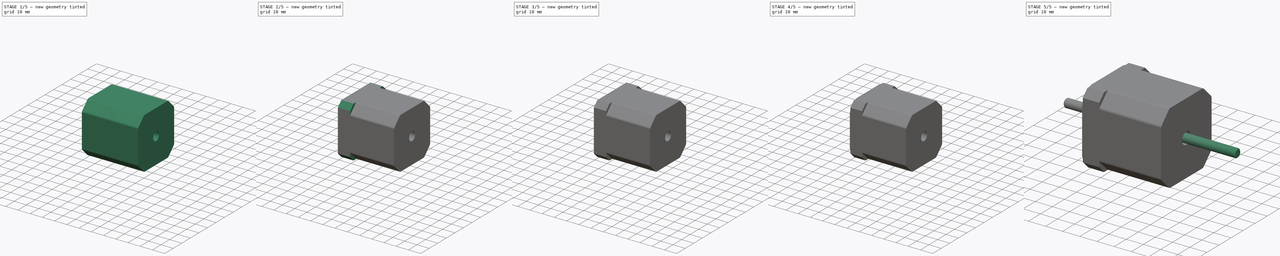
[diagram: build sequence overview — one tinted view per stage of 5, left to right]
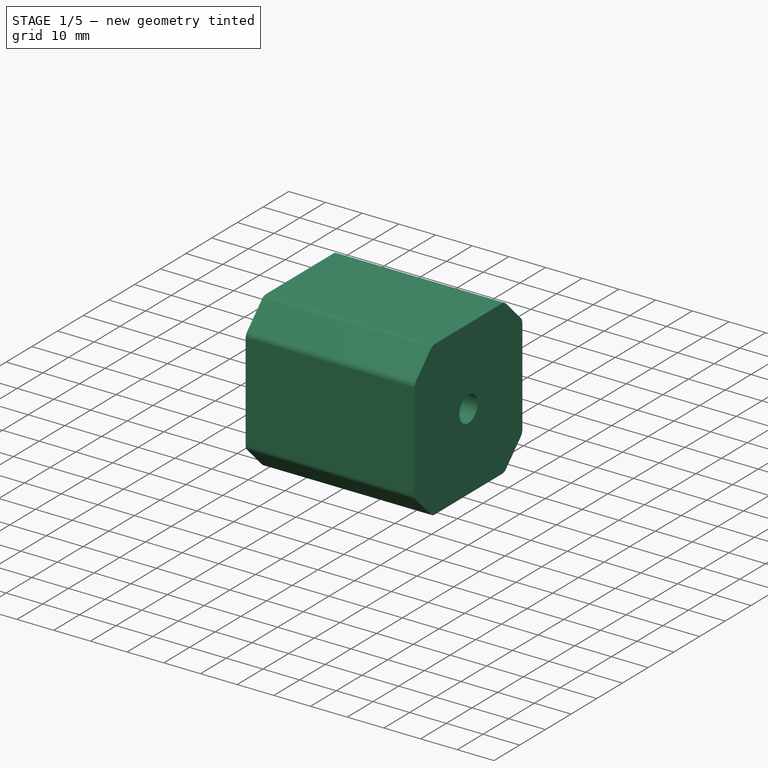
[diagram: stage 1 of 5 — iso view after this stage's code; geometry added in this stage tinted green]
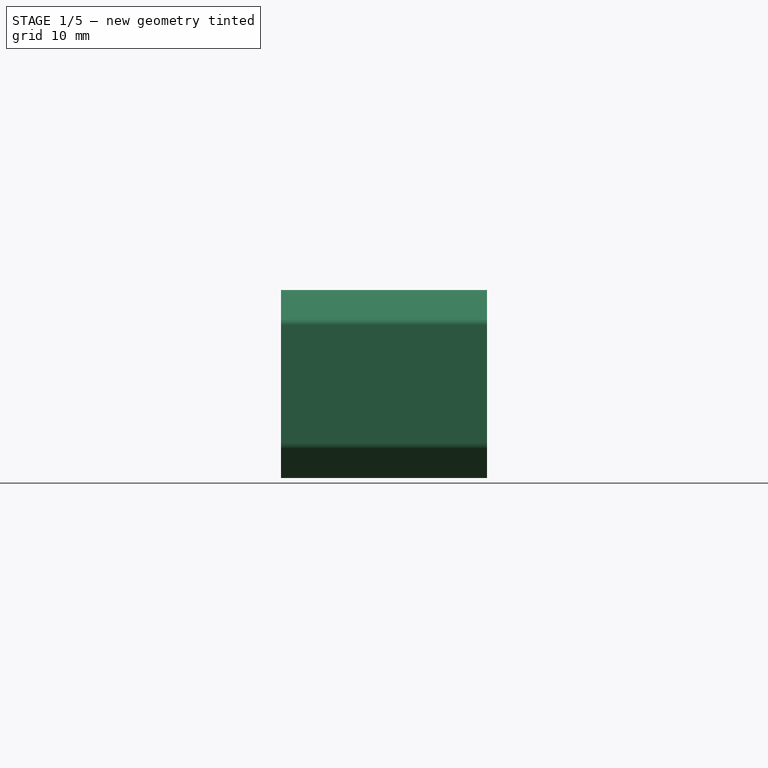
[diagram: stage 1 of 5 — front view after this stage's code; geometry added in this stage tinted green]
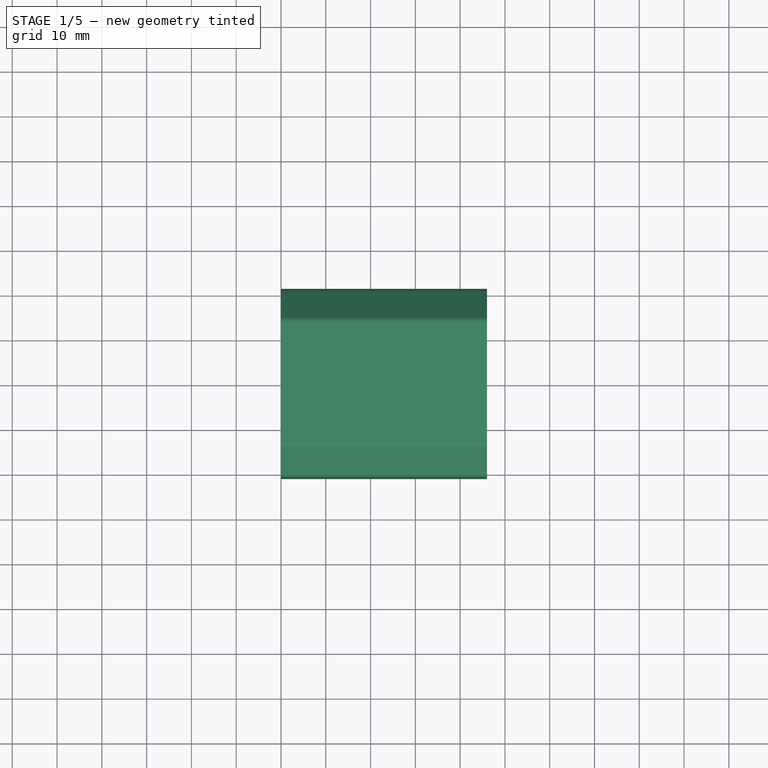
[diagram: stage 1 of 5 — top view after this stage's code; geometry added in this stage tinted green]
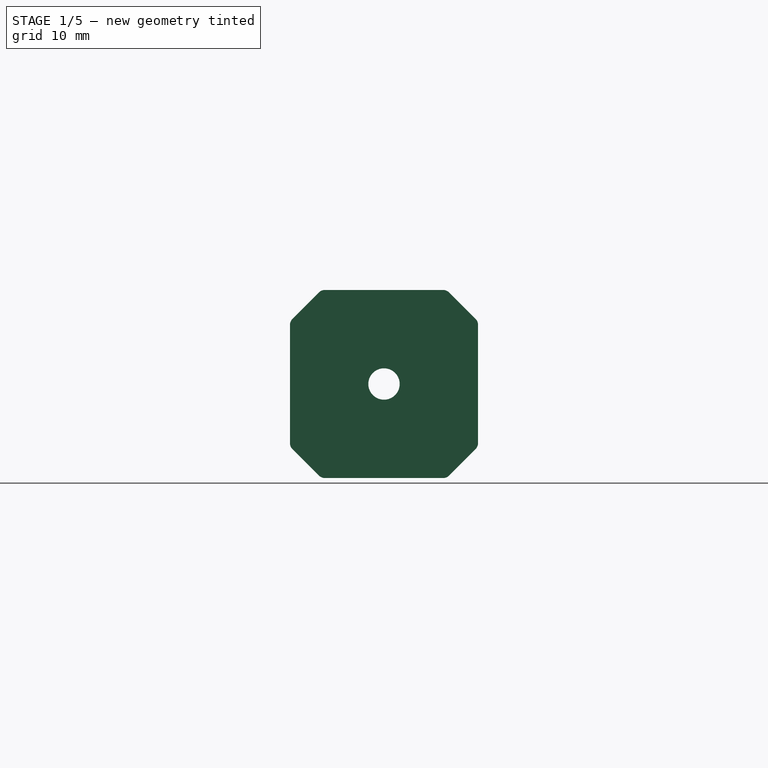
[diagram: stage 1 of 5 — right view after this stage's code; geometry added in this stage tinted green]
FCSTD DOCUMENT  (FreeCAD 0.19R23258 (Git))
Label: Nema17
License: All rights reserved
LicenseURL: http://en.wikipedia.org/wiki/All_rights_reserved
objects: PartDesign::CoordinateSystem×11, Sketcher::SketchObject×11, App::Part×6, PartDesign::Pocket×5, PartDesign::Body×5, App::Link×5, PartDesign::Pad×4, PartDesign::Fillet×4, App::DocumentObjectGroup×2, App::FeaturePython×1, Spreadsheet::Sheet×1, PartDesign::Revolution×1, PartDesign::Hole×1
note: 57 computed .brp shape members not serialized (recipe doc carries the construction recipe); baked Part::Feature solids carry a one-line shape summary decoded from their .brp

FEATURE [PartDesign::Body] Body
  Group = -> [Sketch,Revolution,Sketch001,Pocket]
  Origin = -> Origin005
  Tip = -> Pocket
FEATURE [PartDesign::CoordinateSystem] LCS_1
  AttacherType = Attacher::AttachEngine3D
  MapMode = 2
  Support = -> [LCS_0001]
FEATURE [Sketcher::SketchObject] Sketch002
  MapMode = 5
  Placement = pos=(0,0,0) rot=(0.57735,0.57735,0.57735;2.0944rad)
  Support = -> [YZ_Plane006]
  sketch-geometry (8):
    g0: LineSegment StartX=-21 StartY=14 StartZ=0 EndX=-14 EndY=21 EndZ=0
    g1: LineSegment StartX=-14 StartY=21 StartZ=0 EndX=14 EndY=21 EndZ=0
    g2: LineSegment StartX=14 StartY=21 StartZ=0 EndX=21 EndY=14 EndZ=0
    g3: LineSegment StartX=21 StartY=14 StartZ=0 EndX=21 EndY=-14 EndZ=0
    g4: LineSegment StartX=21 StartY=-14 StartZ=0 EndX=14 EndY=-21 EndZ=0
    g5: LineSegment StartX=14 StartY=-21 StartZ=0 EndX=-14 EndY=-21 EndZ=0
    g6: LineSegment StartX=-14 StartY=-21 StartZ=0 EndX=-21 EndY=-14 EndZ=0
    g7: LineSegment StartX=-21 StartY=-14 StartZ=0 EndX=-21 EndY=14 EndZ=0
  constraints (24):
    c: Coincident(g0,g1)
    c: Horizontal(g1)
    c: Coincident(g1,g2)
    c: Coincident(g2,g3)
    c: Vertical(g3)
    c: Coincident(g3,g4)
    c: Coincident(g4,g5)
    c: Horizontal(g5)
    c: Coincident(g5,g6)
    c: Coincident(g6,g7)
    c: Vertical(g7)
    c: Coincident(g7,g0)
    c: DistanceX(g0,g2) = 42
    c: DistanceY(g5,g0) = 42
    c: Distance(g1) = 28
    c: Equal(g7,g1)
    c: Equal(g1,g3)
    c: Equal(g3,g5)
    c: DistanceY(g5,g-1) = 21
    c: DistanceX(g0,g-1) = 21
    c: Equal(g6,g2)
    c: Equal(g2,g0)
    c: Equal(g0,g4)
    c: DistanceX(g0,g0) = 7
FEATURE [PartDesign::Pad] Pad
  AllowMultiFace = false
  Direction = (1,1,1)
  Length = 46
  Length2 = 100
  Placement = pos=(0,0,0) rot=(0.57735,0.57735,0.57735;2.0944rad)
  Profile = -> Sketch002
  Type = 0
  expr: Length = Spreadsheet.BodyLength - Spreadsheet.FrontCapLength - Spreadsheet.BackCapLenght
FEATURE [PartDesign::CoordinateSystem] LCS_1001
  AttacherType = Attacher::AttachEngine3D
  AttachmentOffset = pos=(46,0,0) rot=(0,0,1;0rad)
  MapMode = 2
  Placement = pos=(46,0,0) rot=(0,0,1;0rad)
  Support = -> [LCS_0002]
  expr: .AttachmentOffset.Base.x = Spreadsheet.BodyLength - Spreadsheet.FrontCapLength - Spreadsheet.BackCapLenght
FEATURE [Sketcher::SketchObject] Sketch003
  MapMode = 5
  Placement = pos=(0,0,0) rot=(0.57735,0.57735,-0.57735;4.18879rad)
  Support = -> [Pad]
  sketch-geometry (1):
    g0: Circle CenterX=0 CenterY=0 CenterZ=0 NormalX=0 NormalY=0 NormalZ=1 AngleXU=0 Radius=3.5
  constraints (2):
    c: Coincident(g-1,g0)
    c: Radius(g0) = 3.5
FEATURE [PartDesign::Pocket] Pocket001
  AllowMultiFace = false
  BaseFeature = -> Pad
  Length = 5
  Length2 = 100
  Placement = pos=(0,0,0) rot=(0.57735,0.57735,0.57735;2.0944rad)
  Profile = -> Sketch003
  Type = 1
FEATURE [PartDesign::Body] Body004
  Group = -> [Sketch010,Pad003,Fillet002]
  Origin = -> Origin010
  Tip = -> Fillet002
FEATURE [App::Part] Mutter
  Group = -> [LCS_0004,Body004]
  Origin = -> Origin009
FEATURE [App::Link] Mutter001
  AssemblyType = Asm4EE
  AttachedBy = #LCS_0004
  AttachedTo = TopCap001#LCS_0
  AttachmentOffset = pos=(-2,0,0) rot=(0,0,1;0rad)
  LinkPlacement = pos=(-2,0,0) rot=(0,0,1;0rad)
  LinkedObject = -> Mutter
  Placement = pos=(-2,0,0) rot=(0,0,1;0rad)
  expr: .AttachmentOffset.Base.x = -Spreadsheet.FrontScheibenThignes
  expr: Placement = TopCap001.Placement * LCS_0.Placement * AttachmentOffset * LCS_0004.Placement ^ -1
FEATURE [App::Link] MiddlePart001
  AssemblyType = Asm4EE
  AttachedBy = #LCS_0002
  AttachedTo = TopCap001#LCS_3
  AttachmentOffset = pos=(0,0,0) rot=(0.57735,0.57735,-0.57735;2.0944rad)
  LinkPlacement = pos=(10,-6.2e-15,6.6e-15) rot=(1,0,0;4.71239rad)
  LinkedObject = -> MiddlePart
  Placement = pos=(10,-6.2e-15,6.6e-15) rot=(1,0,0;4.71239rad)
  expr: Placement = TopCap001.Placement * LCS_3.Placement * AttachmentOffset * LCS_0002.Placement ^ -1
FEATURE [App::Link] EndCap001
  AssemblyType = Asm4EE
  AttachedBy = #LCS_4
  AttachedTo = MiddlePart001#LCS_1001
  AttachmentOffset = pos=(0,0,0) rot=(0,1,0;1.5708rad)
  LinkPlacement = pos=(66,-2.23e-14,6.89e-14) rot=(0,-0.707107,-0.707107;3.14159rad)
  LinkedObject = -> EndCap
  Placement = pos=(66,-2.23e-14,6.89e-14) rot=(0,-0.707107,-0.707107;3.14159rad)
  expr: Placement = MiddlePart001.Placement * LCS_1001.Placement * AttachmentOffset * LCS_4.Placement ^ -1
FEATURE [App::Part] Model
  Group = -> [LCS_Origin,Constraints,Variables,Shaft001,TopCap001,Mutter001,MiddlePart001,EndCap001]
  Origin = -> Origin
  Type = Assembly4 Model
FEATURE [PartDesign::Fillet] Fillet003
  Base = -> Pocket001 [Edge5,Edge1,Edge2,Edge8,Edge23,Edge25,Edge26,Edge24]
  BaseFeature = -> Pocket001
  Placement = pos=(0,0,0) rot=(0.57735,0.57735,0.57735;2.0944rad)
  Radius = 2
  SupportTransform = true
FEATURE [PartDesign::Body] Body001
  Group = -> [Sketch002,Pad,Sketch003,Pocket001,Fillet003]
  Origin = -> Origin006
  Tip = -> Fillet003
FEATURE [App::Part] MiddlePart
  Group = -> [LCS_0002,Body001,LCS_1001]
  Origin = -> Origin003
FEATURE [App::DocumentObjectGroup] Parts
  Group = -> [TopCap,Shaft,MiddlePart,EndCap,Mutter]
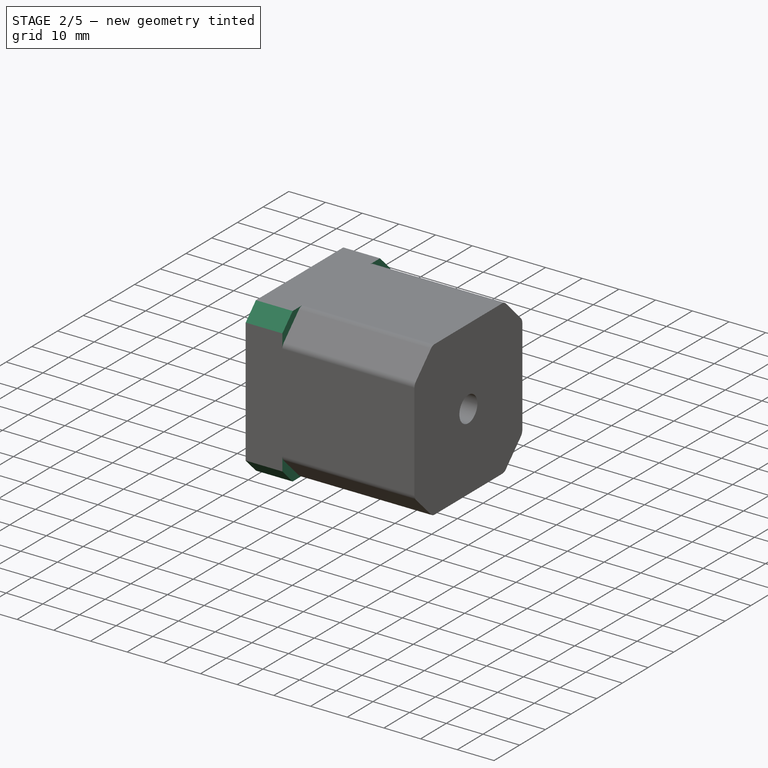
[diagram: stage 2 of 5 — iso view after this stage's code; geometry added in this stage tinted green]
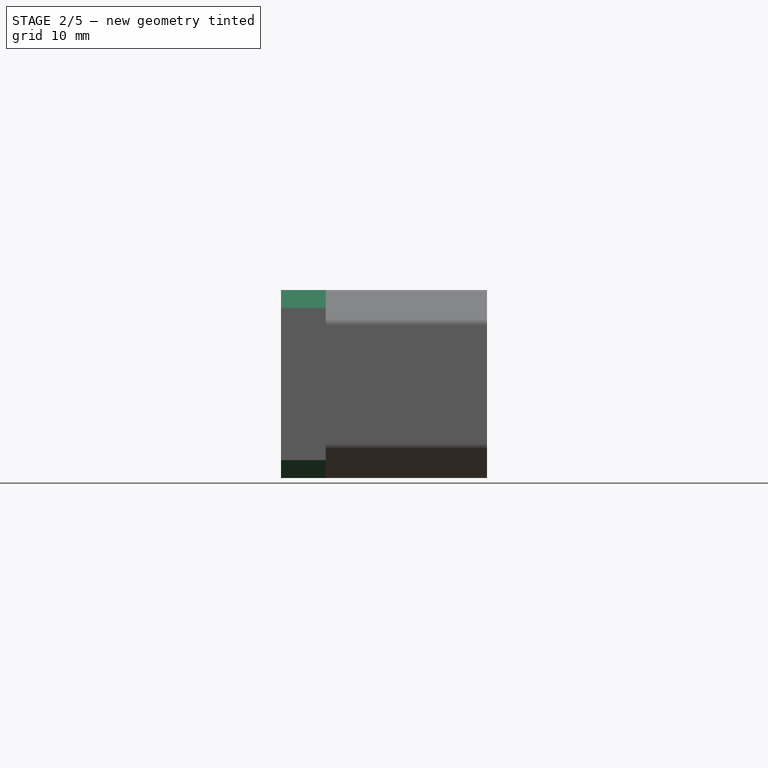
[diagram: stage 2 of 5 — front view after this stage's code; geometry added in this stage tinted green]
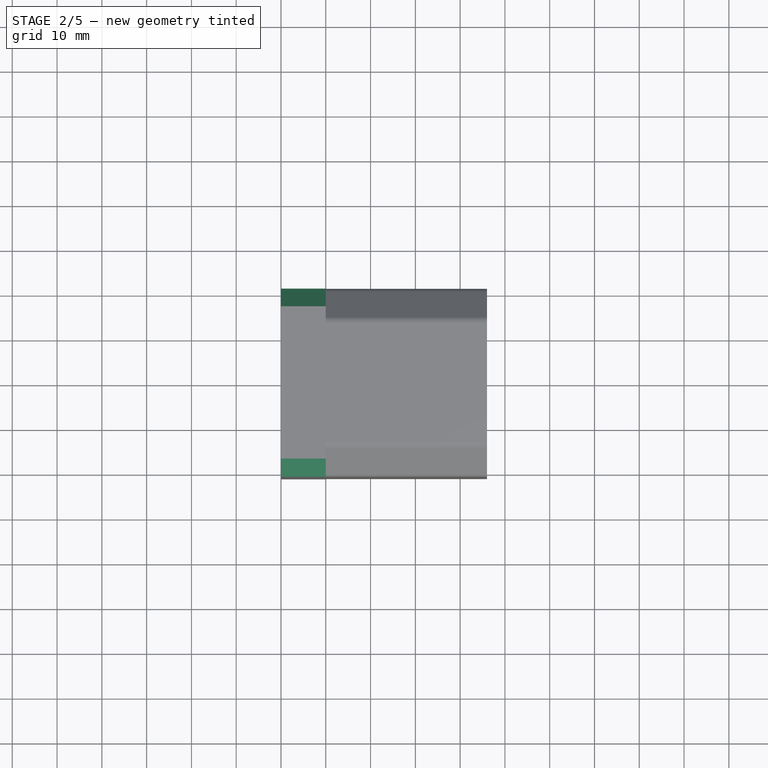
[diagram: stage 2 of 5 — top view after this stage's code; geometry added in this stage tinted green]
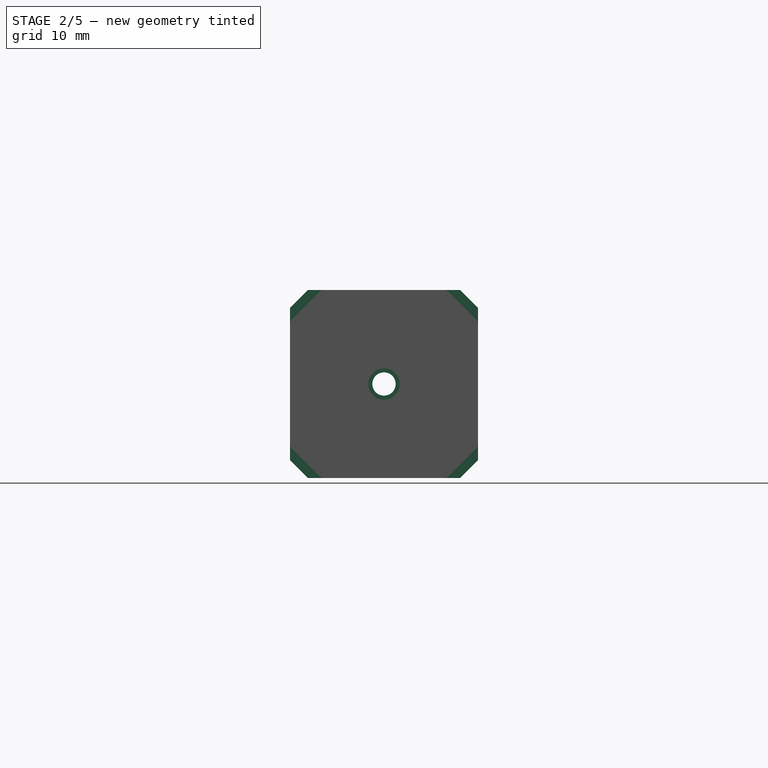
[diagram: stage 2 of 5 — right view after this stage's code; geometry added in this stage tinted green]
FEATURE [Sketcher::SketchObject] Sketch004
  MapMode = 5
  Placement = pos=(0,0,0) rot=(0.57735,0.57735,0.57735;2.0944rad)
  Support = -> [YZ_Plane007]
  sketch-geometry (8):
    g0: LineSegment StartX=-21 StartY=17 StartZ=0 EndX=-21 EndY=-17 EndZ=0
    g1: LineSegment StartX=-21 StartY=-17 StartZ=0 EndX=-17 EndY=-21 EndZ=0
    g2: LineSegment StartX=-17 StartY=-21 StartZ=0 EndX=17 EndY=-21 EndZ=0
    g3: LineSegment StartX=17 StartY=-21 StartZ=0 EndX=21 EndY=-17 EndZ=0
    g4: LineSegment StartX=21 StartY=-17 StartZ=0 EndX=21 EndY=17 EndZ=0
    g5: LineSegment StartX=21 StartY=17 StartZ=0 EndX=17 EndY=21 EndZ=0
    g6: LineSegment StartX=17 StartY=21 StartZ=0 EndX=-17 EndY=21 EndZ=0
    g7: LineSegment StartX=-17 StartY=21 StartZ=0 EndX=-21 EndY=17 EndZ=0
  constraints (24):
    c: Vertical(g0)
    c: Coincident(g0,g1)
    c: Coincident(g1,g2)
    c: Horizontal(g2)
    c: Coincident(g2,g3)
    c: Coincident(g3,g4)
    c: Vertical(g4)
    c: Coincident(g4,g5)
    c: Coincident(g5,g6)
    c: Horizontal(g6)
    c: Coincident(g6,g7)
    c: Coincident(g0,g7)
    c: DistanceX(g0,g4) = 42
    c: DistanceY(g1,g6) = 42
    c: DistanceX(g0,g-1) = 21
    c: DistanceY(g1,g-1) = 21
    c: DistanceX(g6,g6) = 34
    c: Equal(g6,g0)
    c: Equal(g0,g2)
    c: Equal(g2,g4)
    c: DistanceX(g0,g6) = 4
    c: Equal(g7,g5)
    c: Equal(g5,g1)
    c: Equal(g1,g3)
FEATURE [PartDesign::Pad] Pad001
  AllowMultiFace = false
  Direction = (1,1,1)
  Length = 10
  Length2 = 100
  Placement = pos=(0,0,0) rot=(0.57735,0.57735,0.57735;2.0944rad)
  Profile = -> Sketch004
  Type = 0
  expr: Length = Spreadsheet.FrontCapLength
FEATURE [Sketcher::SketchObject] Sketch005
  MapMode = 5
  Placement = pos=(0,0,0) rot=(0.57735,0.57735,-0.57735;4.18879rad)
  Support = -> [Pad001]
  sketch-geometry (1):
    g0: Circle CenterX=0 CenterY=0 CenterZ=0 NormalX=0 NormalY=0 NormalZ=1 AngleXU=0 Radius=2.6
  constraints (2):
    c: Coincident(g0,g-1)
    c: Radius(g0) = 2.6
FEATURE [PartDesign::Pocket] Pocket002
  AllowMultiFace = false
  BaseFeature = -> Pad001
  Length = 5
  Length2 = 100
  Placement = pos=(0,0,0) rot=(0.57735,0.57735,0.57735;2.0944rad)
  Profile = -> Sketch005
  Type = 1
FEATURE [Sketcher::SketchObject] Sketch006
  MapMode = 5
  Placement = pos=(0,0,0) rot=(0.57735,0.57735,-0.57735;4.18879rad)
  Support = -> [Pocket002]
  sketch-geometry (8):
    g0: LineSegment [constr] StartX=-15.5 StartY=15.5 StartZ=0 EndX=15.5 EndY=15.5 EndZ=0
    g1: LineSegment [constr] StartX=15.5 StartY=15.5 StartZ=0 EndX=15.5 EndY=-15.5 EndZ=0
    g2: LineSegment [constr] StartX=15.5 StartY=-15.5 StartZ=0 EndX=-15.5 EndY=-15.5 EndZ=0
    g3: LineSegment [constr] StartX=-15.5 StartY=-15.5 StartZ=0 EndX=-15.5 EndY=15.5 EndZ=0
    g4: Circle CenterX=-15.5 CenterY=15.5 CenterZ=0 NormalX=0 NormalY=0 NormalZ=1 AngleXU=0 Radius=1.5
    g5: Circle CenterX=15.5 CenterY=15.5 CenterZ=0 NormalX=0 NormalY=0 NormalZ=1 AngleXU=0 Radius=1.5
    g6: Circle CenterX=15.5 CenterY=-15.5 CenterZ=0 NormalX=0 NormalY=0 NormalZ=1 AngleXU=0 Radius=1.5
    g7: Circle CenterX=-15.5 CenterY=-15.5 CenterZ=0 NormalX=0 NormalY=0 NormalZ=1 AngleXU=0 Radius=1.5
  constraints (20):
    c: Coincident(g0,g1)
    c: Coincident(g1,g2)
    c: Coincident(g2,g3)
    c: Coincident(g3,g0)
    c: Horizontal(g0)
    c: Horizontal(g2)
    c: Vertical(g1)
    c: Vertical(g3)
    c: Equal(g3,g0)
    c: Distance(g0) = 31
    c: DistanceX(g0,g-1) = 15.5
    c: DistanceY(g2,g-1) = 15.5
    c: Radius(g4) = 1.5
    c: Equal(g4,g5) = 1.5
    c: Equal(g6,g5)
    c: Equal(g7,g6)
    c: Coincident(g7,g2)
    c: Coincident(g4,g0)
    c: Coincident(g5,g0)
    c: Coincident(g6,g1)
FEATURE [PartDesign::Hole] Hole
  AllowMultiFace = false
  BaseFeature = -> Pocket002
  Depth = 5
  DepthType = 0
  Diameter = 1.1
  DrillPoint = 1
  DrillPointAngle = 118
  HoleCutCountersinkAngle = 90
  HoleCutDepth = 0
  HoleCutDiameter = 3
  HoleCutType = 0
  ModelActualThread = false
  Placement = pos=(0,0,0) rot=(0.57735,0.57735,0.57735;2.0944rad)
  Profile = -> Sketch006
  Tapered = false
  TaperedAngle = 90
  ThreadAngle = 60
  ThreadClass = 0
  ThreadCutOffInner = 0.032476
  ThreadCutOffOuter = 0.0649519
  ThreadDirection = 0
  ThreadFit = 0
  ThreadPitch = 0.3
  ThreadSize = 3
  ThreadType = 1
  Threaded = true
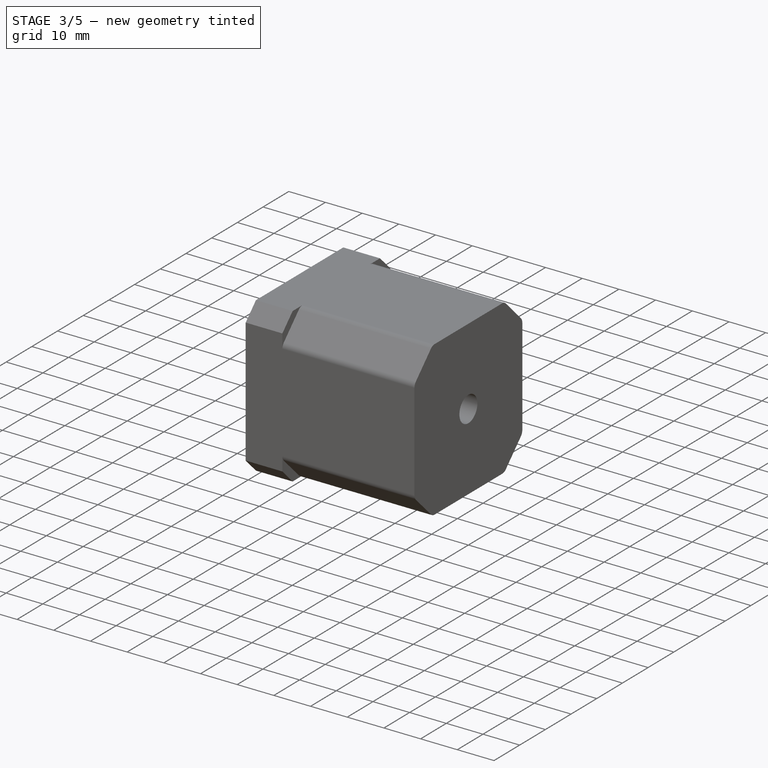
[diagram: stage 3 of 5 — iso view after this stage's code; geometry added in this stage tinted green]
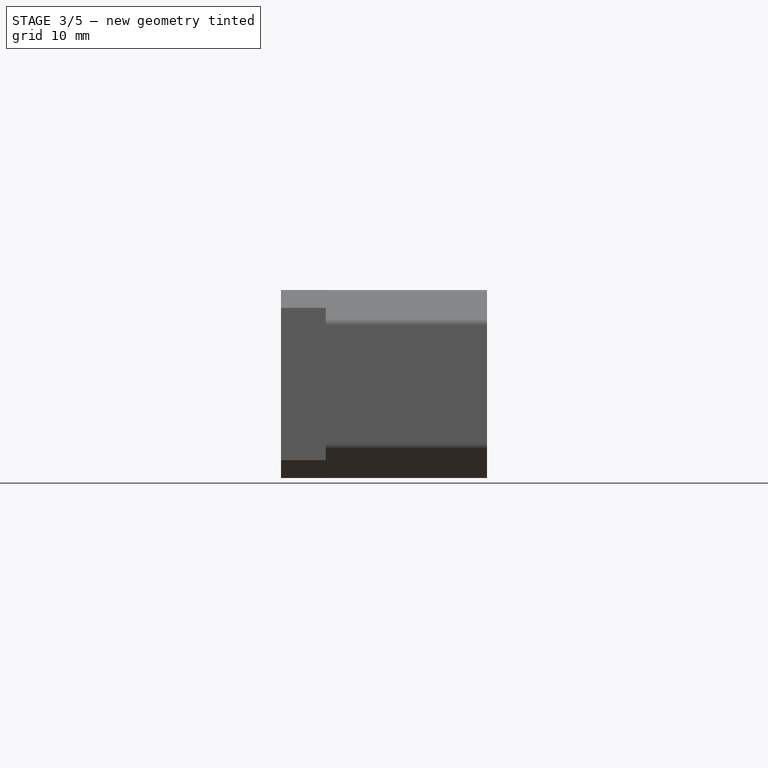
[diagram: stage 3 of 5 — front view after this stage's code; geometry added in this stage tinted green]
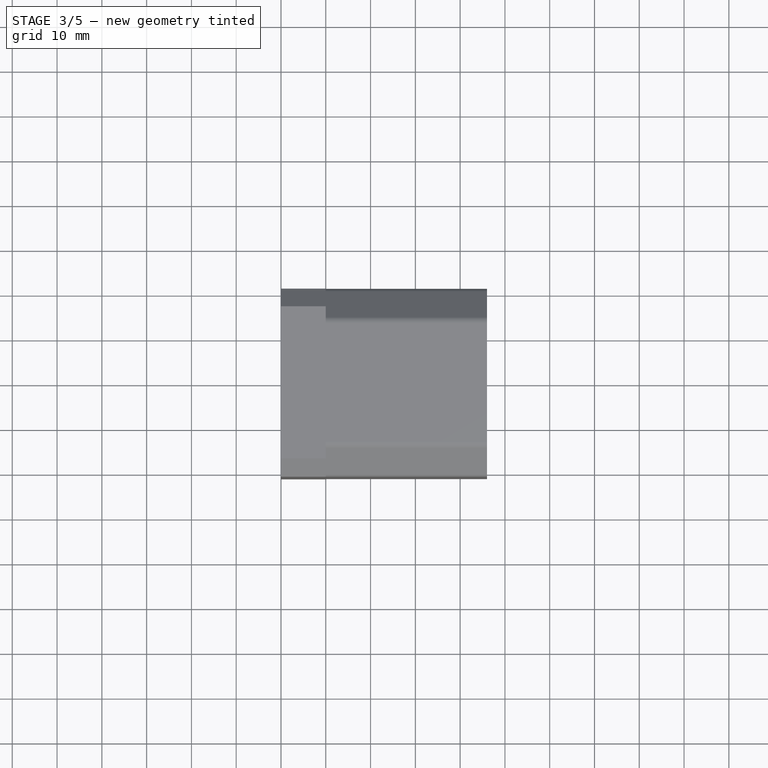
[diagram: stage 3 of 5 — top view after this stage's code; geometry added in this stage tinted green]
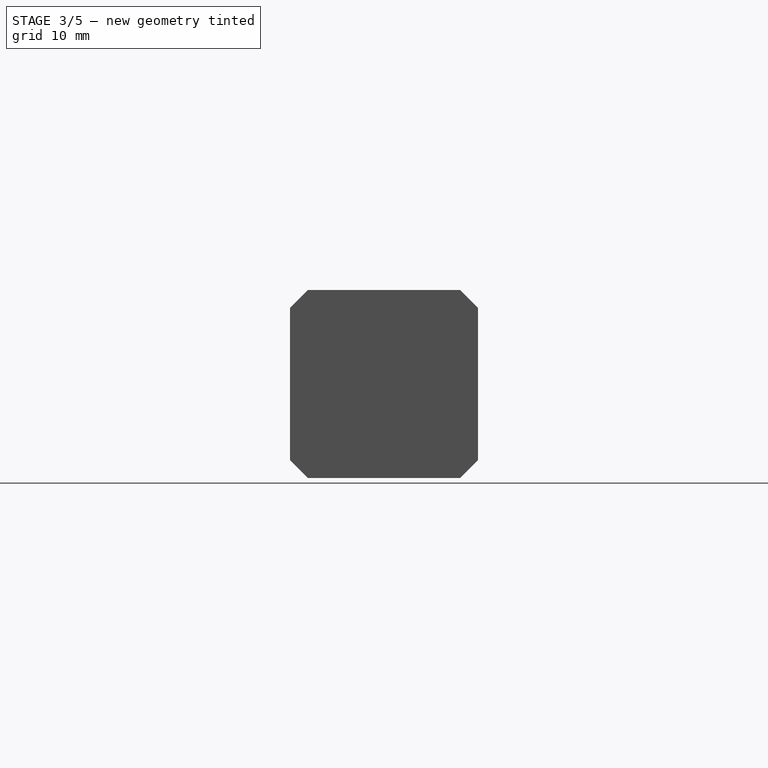
[diagram: stage 3 of 5 — right view after this stage's code; geometry added in this stage tinted green]
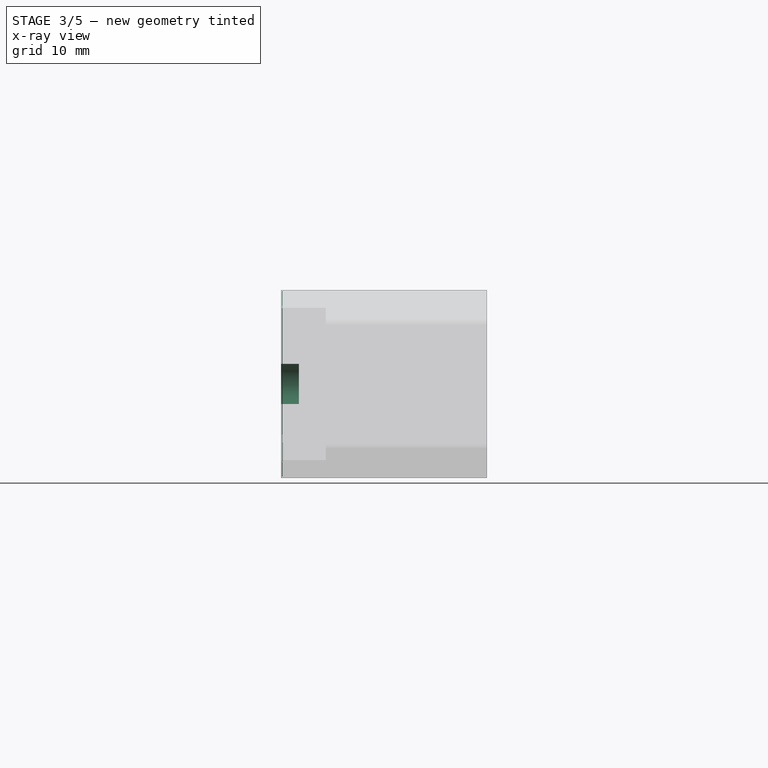
[diagram: stage 3 of 5 — x-ray composite at the front view; earlier geometry ghosted, this stage's added geometry solid]
FEATURE [PartDesign::Fillet] Fillet
  Base = -> Hole [Edge11,Edge6,Edge3,Edge9,Edge12,Edge14,Edge15,Edge13]
  BaseFeature = -> Hole
  Placement = pos=(0,0,0) rot=(0.57735,0.57735,0.57735;2.0944rad)
  Radius = 1
  SupportTransform = true
FEATURE [PartDesign::Body] Body002
  Group = -> [Sketch004,Pad001,Sketch005,Pocket002,Sketch006,Hole,Fillet]
  Origin = -> Origin007
  Tip = -> Fillet
FEATURE [Sketcher::SketchObject] Sketch007
  MapMode = 5
  Placement = pos=(0,0,0) rot=(0.57735,0.57735,0.57735;2.0944rad)
  Support = -> [YZ_Plane008]
  sketch-geometry (8):
    g0: LineSegment StartX=-21 StartY=17 StartZ=0 EndX=-17 EndY=21 EndZ=0
    g1: LineSegment StartX=-17 StartY=21 StartZ=0 EndX=17 EndY=21 EndZ=0
    g2: LineSegment StartX=17 StartY=21 StartZ=0 EndX=21 EndY=17 EndZ=0
    g3: LineSegment StartX=21 StartY=17 StartZ=0 EndX=21 EndY=-17 EndZ=0
    g4: LineSegment StartX=21 StartY=-17 StartZ=0 EndX=17 EndY=-21 EndZ=0
    g5: LineSegment StartX=17 StartY=-21 StartZ=0 EndX=-17 EndY=-21 EndZ=0
    g6: LineSegment StartX=-17 StartY=-21 StartZ=0 EndX=-21 EndY=-17 EndZ=0
    g7: LineSegment StartX=-21 StartY=-17 StartZ=0 EndX=-21 EndY=17 EndZ=0
  constraints (24):
    c: Coincident(g0,g1)
    c: Horizontal(g1)
    c: Coincident(g1,g2)
    c: Coincident(g2,g3)
    c: Vertical(g3)
    c: Coincident(g3,g4)
    c: Coincident(g4,g5)
    c: Horizontal(g5)
    c: Coincident(g5,g6)
    c: Coincident(g6,g7)
    c: Vertical(g7)
    c: Coincident(g7,g0)
    c: DistanceX(g0,g2) = 42
    c: DistanceY(g5,g0) = 42
    c: Distance(g1) = 34
    c: DistanceY(g0,g0) = 4
    c: Equal(g0,g4)
    c: Equal(g4,g6)
    c: Equal(g6,g2)
    c: Equal(g1,g7)
    c: Equal(g7,g5)
    c: Equal(g5,g3)
    c: DistanceX(g0,g-1) = 21
    c: DistanceY(g-1,g0) = 21
FEATURE [PartDesign::Pad] Pad002
  AllowMultiFace = false
  Direction = (1,1,1)
  Length = 10
  Length2 = 100
  Placement = pos=(0,0,0) rot=(0.57735,0.57735,0.57735;2.0944rad)
  Profile = -> Sketch007
  Type = 0
  expr: Length = Spreadsheet.BackCapLenght
FEATURE [Sketcher::SketchObject] Sketch008
  MapMode = 5
  Placement = pos=(0,0,0) rot=(0.57735,0.57735,-0.57735;4.18879rad)
  Support = -> [Pad002]
  sketch-geometry (1):
    g0: Circle CenterX=0 CenterY=0 CenterZ=0 NormalX=0 NormalY=0 NormalZ=1 AngleXU=0 Radius=4.5
  constraints (2):
    c: Coincident(g-1,g0)
    c: Radius(g0) = 4.5
FEATURE [PartDesign::Pocket] Pocket003
  AllowMultiFace = false
  BaseFeature = -> Pad002
  Length = 4
  Length2 = 100
  Placement = pos=(0,0,0) rot=(0.57735,0.57735,0.57735;2.0944rad)
  Profile = -> Sketch008
  Type = 0
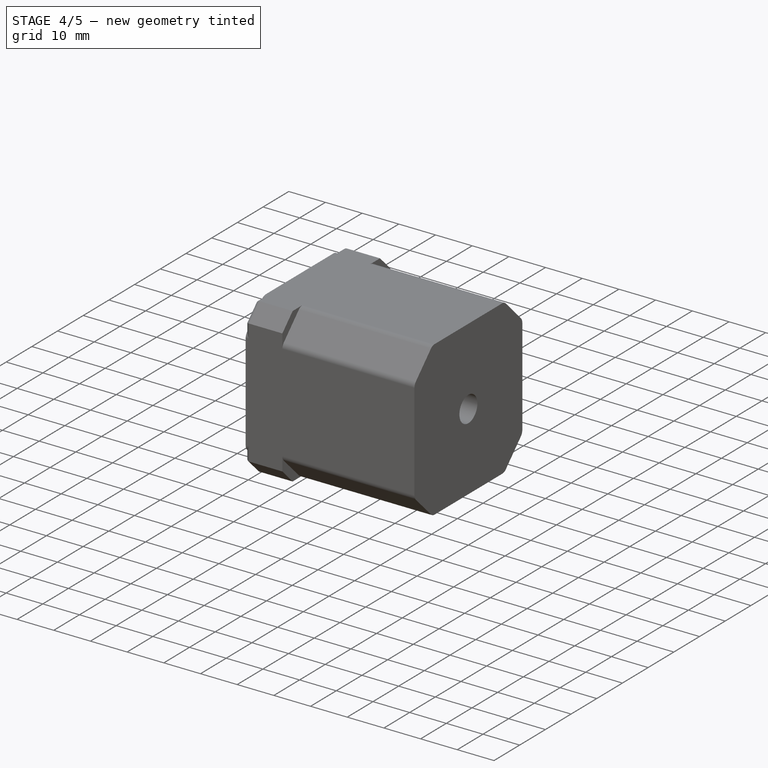
[diagram: stage 4 of 5 — iso view after this stage's code; geometry added in this stage tinted green]
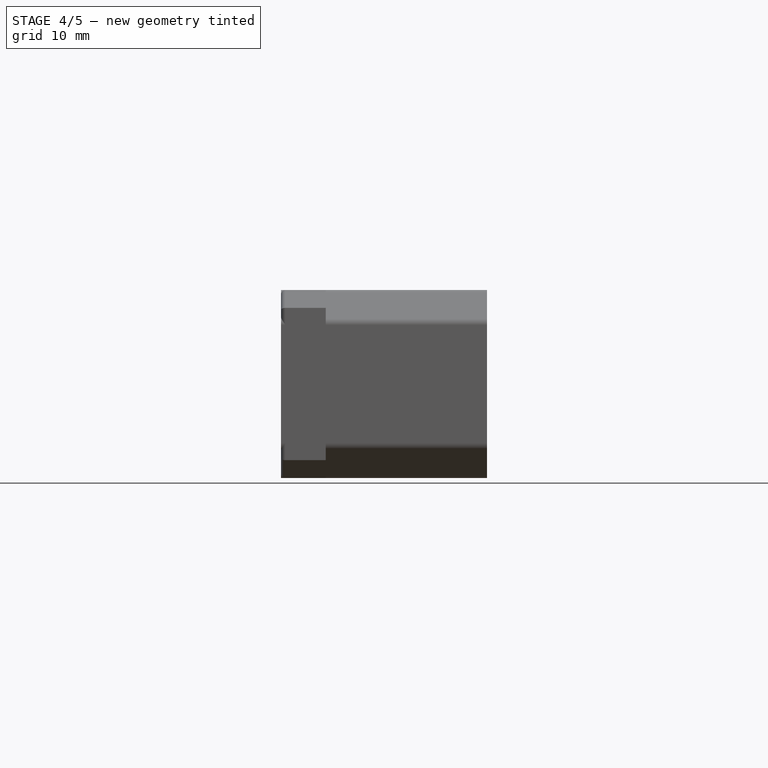
[diagram: stage 4 of 5 — front view after this stage's code; geometry added in this stage tinted green]
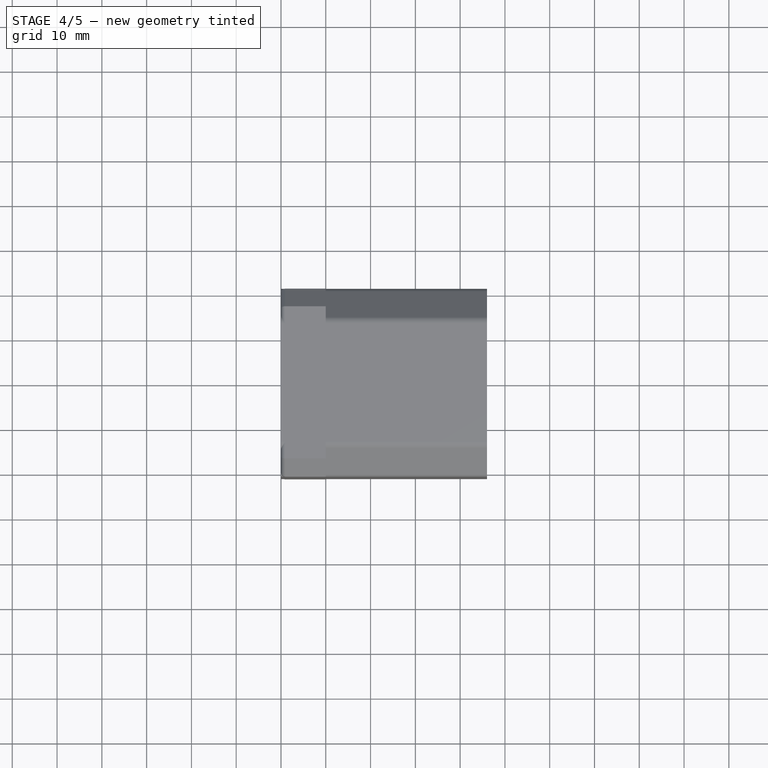
[diagram: stage 4 of 5 — top view after this stage's code; geometry added in this stage tinted green]
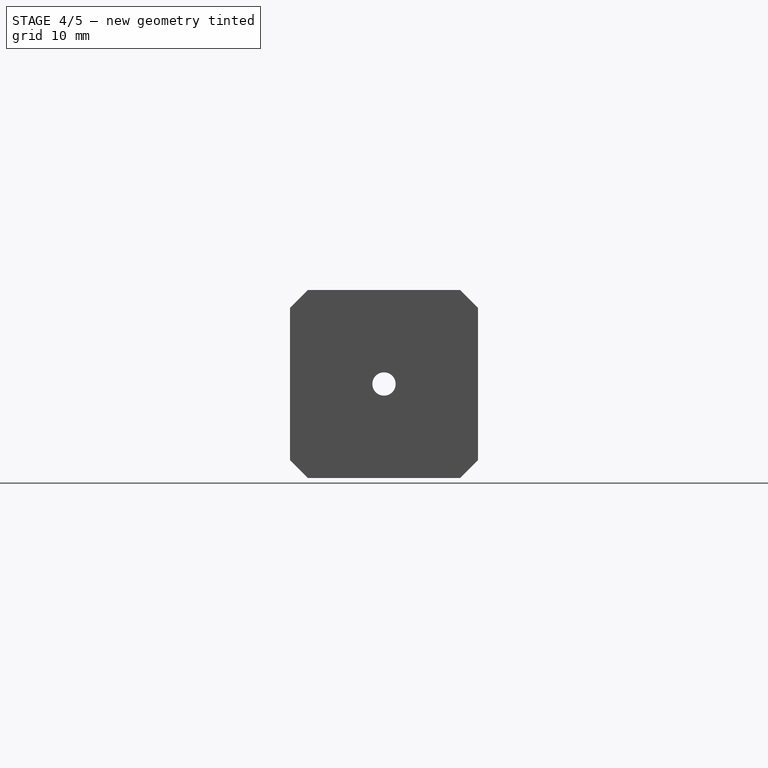
[diagram: stage 4 of 5 — right view after this stage's code; geometry added in this stage tinted green]
FEATURE [Sketcher::SketchObject] Sketch009
  MapMode = 5
  Placement = pos=(4,-1.8e-15,1.8e-15) rot=(0.57735,0.57735,-0.57735;4.18879rad)
  Support = -> [Pocket003]
  sketch-geometry (1):
    g0: Circle CenterX=0 CenterY=0 CenterZ=0 NormalX=0 NormalY=0 NormalZ=1 AngleXU=0 Radius=2.6
  constraints (2):
    c: Coincident(g0,g-1)
    c: Radius(g0) = 2.6
FEATURE [PartDesign::Pocket] Pocket004
  AllowMultiFace = false
  BaseFeature = -> Pocket003
  Length = 5
  Length2 = 100
  Placement = pos=(0,0,0) rot=(0.57735,0.57735,0.57735;2.0944rad)
  Profile = -> Sketch009
  Type = 1
FEATURE [PartDesign::Fillet] Fillet001
  Base = -> Pocket004 [Face4]
  BaseFeature = -> Pocket004
  Placement = pos=(0,0,0) rot=(0.57735,0.57735,0.57735;2.0944rad)
  Radius = 1
  SupportTransform = true
FEATURE [PartDesign::Body] Body003
  Group = -> [Sketch007,Pad002,Sketch008,Pocket003,Sketch009,Pocket004,Fillet001]
  Origin = -> Origin008
  Tip = -> Fillet001
FEATURE [PartDesign::CoordinateSystem] LCS_0004
  AttacherType = Attacher::AttachEngine3D
  MapMode = 2
  Support = -> [X_Axis009]
FEATURE [Sketcher::SketchObject] Sketch010
  MapMode = 5
  Placement = pos=(0,0,0) rot=(0.57735,0.57735,0.57735;2.0944rad)
  Support = -> [YZ_Plane010]
  expr: Constraints[2] = Spreadsheet.FrontScheibenRaidius
  sketch-geometry (2):
    g0: Circle CenterX=0 CenterY=0 CenterZ=0 NormalX=0 NormalY=0 NormalZ=1 AngleXU=0 Radius=11
    g1: Circle CenterX=0 CenterY=0 CenterZ=0 NormalX=0 NormalY=0 NormalZ=1 AngleXU=0 Radius=4.5
  constraints (4):
    c: Coincident(g0,g-1)
    c: Coincident(g0,g1)
    c: Radius(g0) = 11
    c: Radius(g1) = 4.5
FEATURE [PartDesign::Pad] Pad003
  AllowMultiFace = false
  Direction = (1,1,1)
  Length = 2
  Length2 = 100
  Placement = pos=(0,0,0) rot=(0.57735,0.57735,0.57735;2.0944rad)
  Profile = -> Sketch010
  Type = 0
  expr: Length = Spreadsheet.FrontScheibenThignes
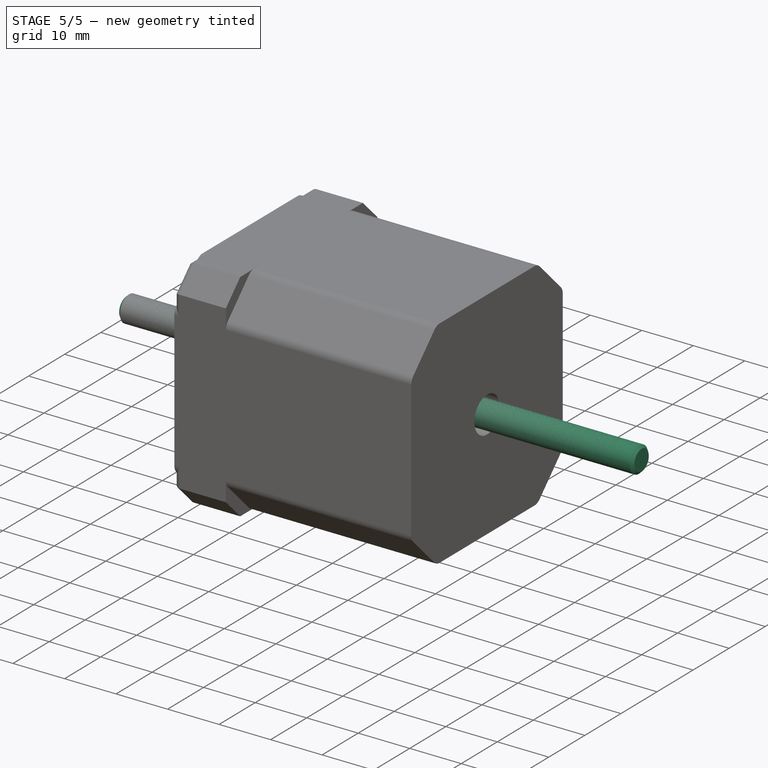
[diagram: stage 5 of 5 — iso view after this stage's code; geometry added in this stage tinted green]
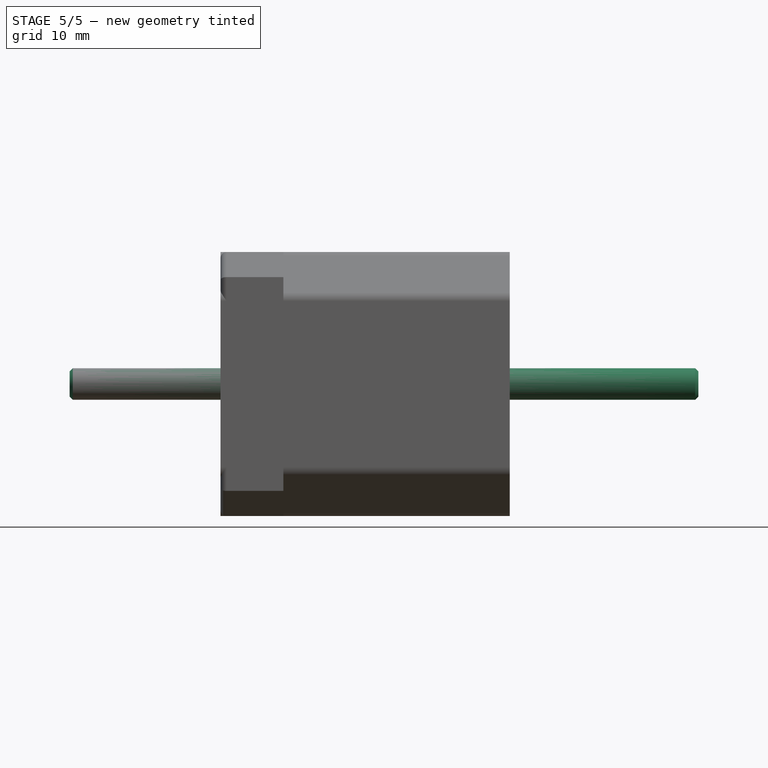
[diagram: stage 5 of 5 — front view after this stage's code; geometry added in this stage tinted green]
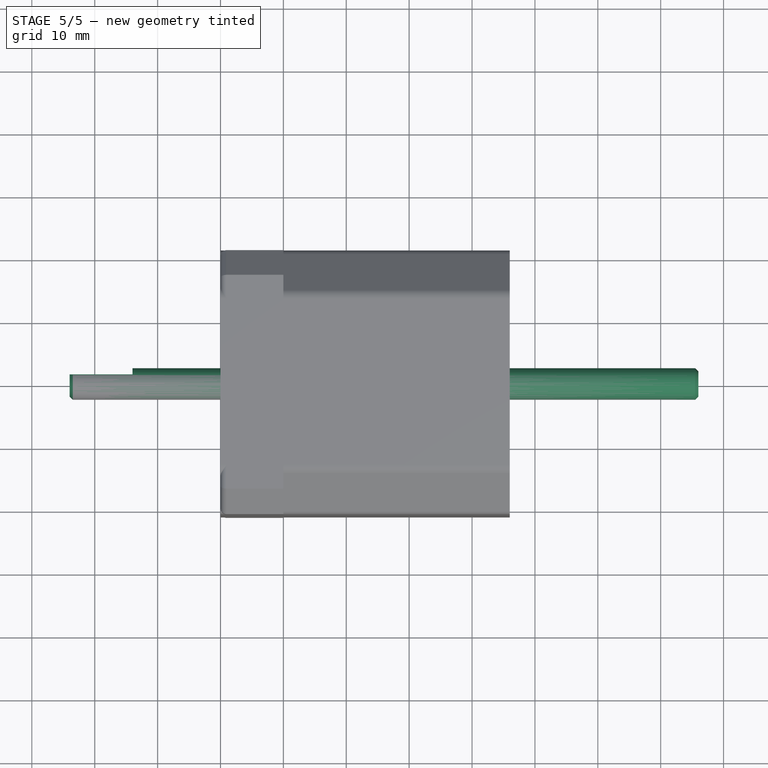
[diagram: stage 5 of 5 — top view after this stage's code; geometry added in this stage tinted green]
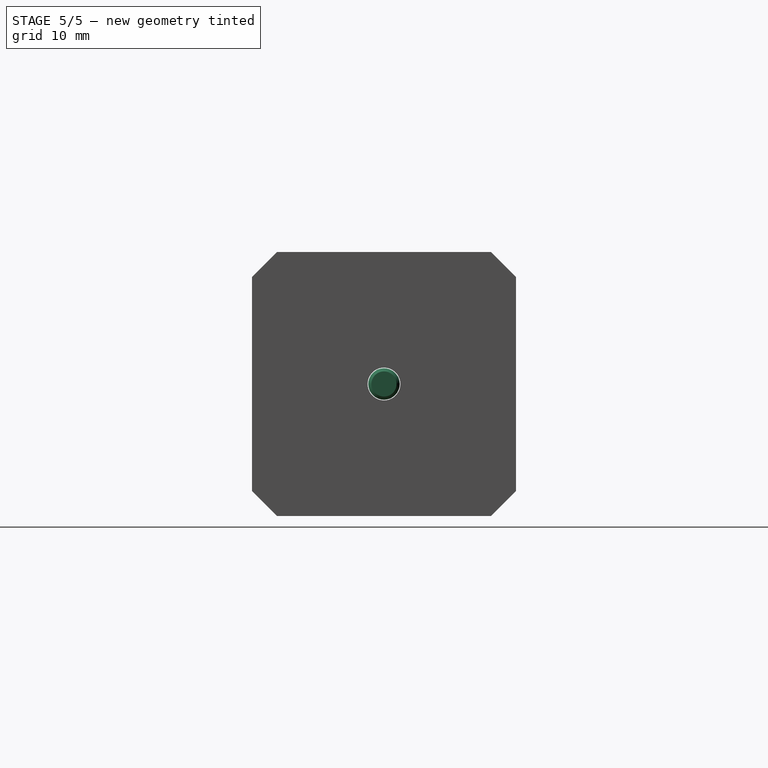
[diagram: stage 5 of 5 — right view after this stage's code; geometry added in this stage tinted green]
FEATURE [PartDesign::CoordinateSystem] LCS_Origin
  AttacherType = Attacher::AttachEngine3D
  MapMode = 2
  Support = -> [X_Axis]
FEATURE [App::DocumentObjectGroup] Constraints
FEATURE [App::FeaturePython] Variables  # WARN: FeaturePython — macro-defined, semantics opaque (R4)
  Turn = 0
  Visibility1 = true
FEATURE [PartDesign::CoordinateSystem] LCS_0
  AttacherType = Attacher::AttachEngine3D
  MapMode = 2
  Support = -> [X_Axis001]
FEATURE [PartDesign::CoordinateSystem] LCS_0001
  AttacherType = Attacher::AttachEngine3D
  MapMode = 2
  Support = -> [X_Axis002]
FEATURE [PartDesign::CoordinateSystem] LCS_0002
  AttacherType = Attacher::AttachEngine3D
  MapMode = 2
  Support = -> [X_Axis003]
FEATURE [PartDesign::CoordinateSystem] LCS_0003
  AttacherType = Attacher::AttachEngine3D
  MapMode = 2
  Support = -> [X_Axis004]
FEATURE [Spreadsheet::Sheet] Spreadsheet  label="Dimansions"
  cells = A1=Body Length; B1=L1; C1(BodyLength)=66; A2=Front Shaft Length; B2=L2; C2(FrontShaftLength)=24; A3=Back Shaft Length; B3=L3; C3(BackShaftLength)=10; A4=Shaft Cutin Length; B4=L4; C4(ShaftCutinLength)=10; A5=Shaft Cutin Deth; B5=D1; C5(ShaftCutinDeth)=1; A6=Front Scheiben Thignes; B6=T1; C6(FrontScheibenThignes)=2; A7=Front Scheiben Digameter; B7=DIA1; C7(FrontScheibenDiameter)=22; A8=Front Cap Length; B8=L5; C8(FrontCapLength)=10; A9=Back Cap Length; B9=L6; C9(BackCapLenght)=10; A10=FronScheibenRadius; C10(FrontScheibenRaidius)==FrontScheibenDiameter / 2
FEATURE [Sketcher::SketchObject] Sketch
  MapMode = 5
  Placement = pos=(0,0,0) rot=(1,0,0;1.5708rad)
  Support = -> [XZ_Plane005]
  expr: Constraints[14] = Spreadsheet.FrontShaftLength
  expr: Constraints[15] = Spreadsheet.BodyLength + Spreadsheet.BackShaftLength
  sketch-geometry (6):
    g0: LineSegment StartX=-24 StartY=0 StartZ=0 EndX=-24 EndY=2 EndZ=0
    g1: LineSegment StartX=-24 StartY=2 StartZ=0 EndX=-23.5 EndY=2.5 EndZ=0
    g2: LineSegment StartX=-23.5 StartY=2.5 StartZ=0 EndX=75.5 EndY=2.5 EndZ=0
    g3: LineSegment StartX=75.5 StartY=2.5 StartZ=0 EndX=76 EndY=2 EndZ=0
    g4: LineSegment StartX=76 StartY=2 StartZ=0 EndX=76 EndY=0 EndZ=0
    g5: LineSegment StartX=76 StartY=0 StartZ=0 EndX=-24 EndY=0 EndZ=0
  constraints (18):
    c: Vertical(g0)
    c: Coincident(g0,g1)
    c: Coincident(g1,g2)
    c: Horizontal(g2)
    c: Coincident(g2,g3)
    c: Coincident(g3,g4)
    c: Vertical(g4)
    c: Coincident(g4,g5)
    c: Horizontal(g5)
    c: Coincident(g0,g5)
    c: PointOnObject(g0,g-1)
    c: DistanceY(g-1,g1) = 2.5
    c: DistanceX(g0,g1) = 0.5
    c: DistanceX(g2,g3) = 0.5
    c: DistanceX(g0,g-1) = 24
    c: DistanceX(g-1,g4) = 76
    c: DistanceY(g0,g1) = 0.5
    c: DistanceY(g3,g2) = 0.5
FEATURE [PartDesign::Revolution] Revolution
  AllowMultiFace = false
  Angle = 360
  Axis = (1,0,0)
  Base = (0,0,0)
  Placement = pos=(0,0,0) rot=(1,0,0;1.5708rad)
  Profile = -> Sketch
  ReferenceAxis = -> X_Axis005
  Reversed = true
FEATURE [Sketcher::SketchObject] Sketch001
  MapMode = 5
  Placement = pos=(-24,0,0) rot=(0.707107,0,-0.707107;3.14159rad)
  Support = -> [Revolution]
  expr: Constraints[11] = Spreadsheet.ShaftCutinDeth
  sketch-geometry (4):
    g0: LineSegment StartX=-2.5 StartY=-1.5 StartZ=0 EndX=2.5 EndY=-1.5 EndZ=0
    g1: LineSegment StartX=2.5 StartY=-1.5 StartZ=0 EndX=2.5 EndY=-2.5 EndZ=0
    g2: LineSegment StartX=2.5 StartY=-2.5 StartZ=0 EndX=-2.5 EndY=-2.5 EndZ=0
    g3: LineSegment StartX=-2.5 StartY=-2.5 StartZ=0 EndX=-2.5 EndY=-1.5 EndZ=0
  constraints (12):
    c: Coincident(g0,g1)
    c: Coincident(g1,g2)
    c: Coincident(g2,g3)
    c: Coincident(g3,g0)
    c: Horizontal(g0)
    c: Horizontal(g2)
    c: Vertical(g1)
    c: Vertical(g3)
    c: Distance(g0) = 5
    c: DistanceX(g0,g-1) = 2.5
    c: DistanceY(g2,g-1) = 2.5
    c: DistanceY(g1,g1) = 1
FEATURE [PartDesign::Pocket] Pocket
  AllowMultiFace = false
  BaseFeature = -> Revolution
  Length = 10
  Length2 = 100
  Placement = pos=(0,0,0) rot=(1,0,0;1.5708rad)
  Profile = -> Sketch001
  Type = 0
  expr: Length = Spreadsheet.ShaftCutinLength
FEATURE [App::Link] Shaft001
  AssemblyType = Asm4EE
  AttachedBy = #LCS_1
  AttachedTo = Parent Assembly#LCS_Origin
  LinkedObject = -> Shaft
  expr: .AttachmentOffset.Rotation.Angle = Variables.Turn
  expr: Placement = LCS_Origin.Placement * AttachmentOffset * LCS_1.Placement ^ -1
FEATURE [PartDesign::CoordinateSystem] LCS_2
  AttacherType = Attacher::AttachEngine3D
  MapMode = 11
  Placement = pos=(-24,0,0) rot=(0.68313,-0.258199,-0.68313;2.63623rad)
  Support = -> [Pocket]
FEATURE [App::Part] Shaft
  Group = -> [LCS_0001,Body,LCS_1,LCS_2]
  Origin = -> Origin002
FEATURE [App::Link] TopCap001
  AssemblyType = Asm4EE
  AttachedBy = #LCS_0
  AttachedTo = Parent Assembly#LCS_Origin
  LinkedObject = -> TopCap
  expr: Placement = LCS_Origin.Placement * AttachmentOffset * LCS_0.Placement ^ -1
FEATURE [PartDesign::CoordinateSystem] LCS_3
  AttacherType = Attacher::AttachEngine3D
  MapMode = 11
  Placement = pos=(10,-4.4e-15,5e-15) rot=(0.707107,0,-0.707107;3.14159rad)
  Support = -> [Fillet]
FEATURE [App::Part] TopCap
  Group = -> [LCS_0,Body002,LCS_3]
  Origin = -> Origin001
FEATURE [PartDesign::CoordinateSystem] LCS_4
  AttacherType = Attacher::AttachEngine3D
  MapMode = 11
  Placement = pos=(10,-7.5e-15,6.5e-15) rot=(0.707107,0,-0.707107;3.14159rad)
  Support = -> [Fillet001]
FEATURE [App::Part] EndCap
  Group = -> [LCS_0003,Body003,LCS_4]
  Origin = -> Origin004
FEATURE [PartDesign::Fillet] Fillet002
  Base = -> Pad003 [Face3]
  BaseFeature = -> Pad003
  Placement = pos=(0,0,0) rot=(0.57735,0.57735,0.57735;2.0944rad)
  Radius = 0.5
  SupportTransform = true
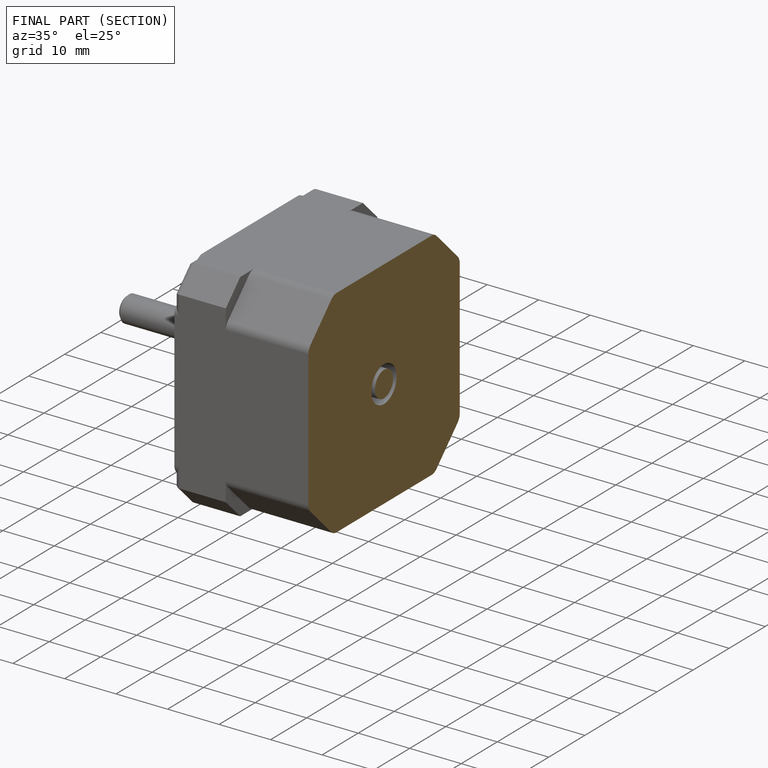
[diagram: finished part — half-section view (interior)]
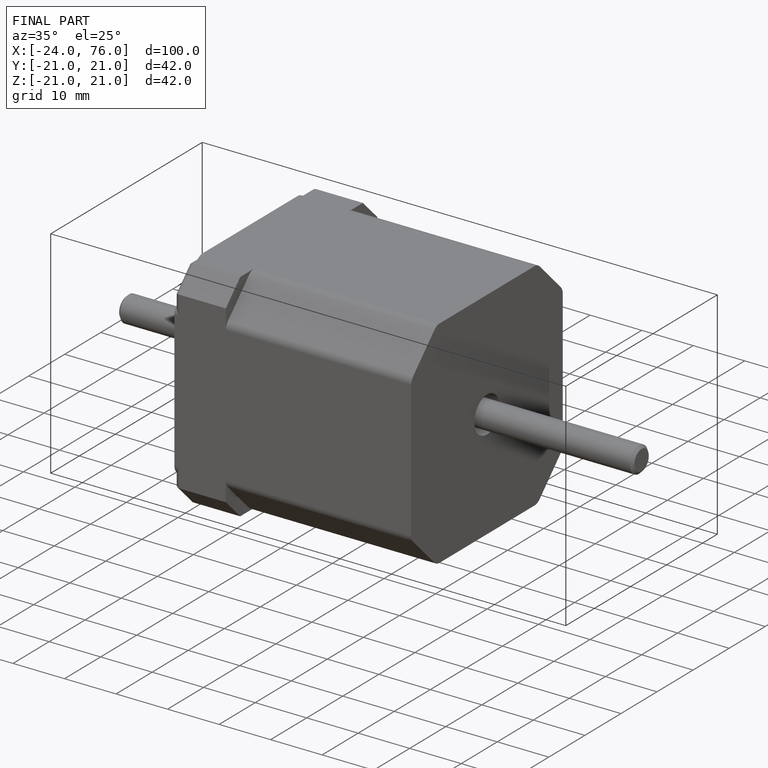
[diagram: finished part — iso view with bounding-box wireframe]
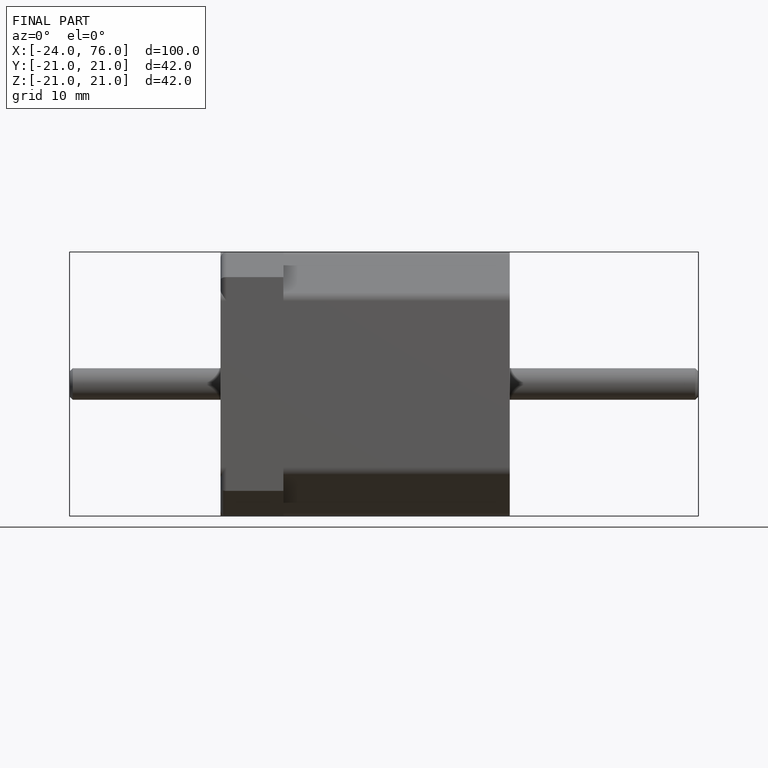
[diagram: finished part — front view with bounding-box wireframe]
